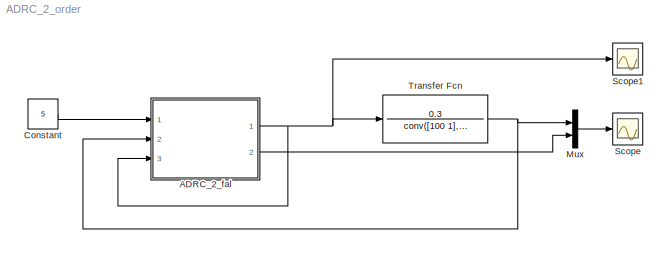
MODEL ADRC_2_order
KIND model
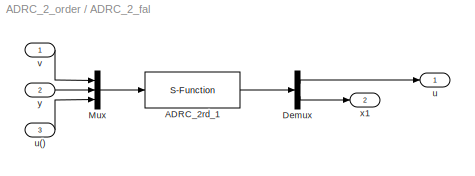
BLOCK [SubSystem] ADRC_2_fal
  AncestorBlock = ADRC/ADRC/ADRC_2rd/ADRC_2_fal
  FunctionWithSeparateData = off
  MaskCallbackString = |||||||||
  MaskEnableString = on,on,on,on,on,on,on,on,on,on
  MaskHideContents = off
  MaskIconFrame = on
  MaskIconOpaque = on
  MaskIconRotate = none
  MaskIconUnits = autoscale
  MaskPortRotate = default
  MaskPromptString = r|h|B01=|B02=|B03=|D=|b|k1=|k2=|Ds=
  MaskStyleString = edit,edit,edit,edit,edit,edit,edit,edit,edit,edit
  MaskToolTipString = on,on,on,on,on,on,on,on,on,on
  MaskTunableValueString = on,on,on,on,on,on,on,on,on,on
  MaskValueString = 0.0001|0.1|20|30|65|0.2|0.5|5|1|0.05
  MaskVariables = r=@1;h=@2;B01=@3;B02=@4;B03=@5;D=@6;b=@7;k1=@8;k2=@9;Ds=@10;
  MaskVisibilityString = on,on,on,on,on,on,on,on,on,on
  MinAlgLoopOccurrences = off
  Opaque = off
  Ports = [3, 2]
  PropExecContextOutsideSubsystem = off
  RTWSystemCode = Auto
  RequestExecContextInheritance = off
  SID = 8
BLOCK [S-Function] ADRC_2_fal/ADRC_2rd_1
  EnableBusSupport = off
  FunctionName = ADRC_2fal
  Parameters = r,h,B01,B02,B03,D,b,k1,k2,Ds
  Ports = [1, 1]
  SID = 8:62
BLOCK [Demux] ADRC_2_fal/Demux
  DisplayOption = bar
  Outputs = 2
  Ports = [1, 2]
  SID = 8:256
BLOCK [Mux] ADRC_2_fal/Mux
  DisplayOption = bar
  Inputs = 3
  Ports = [3, 1]
  SID = 8:144
BLOCK [Outport] ADRC_2_fal/u
  IconDisplay = Port number
  SID = 8:141
BLOCK [Inport] ADRC_2_fal/u()
  IconDisplay = Port number
  Port = 3
  SID = 8:145
BLOCK [Inport] ADRC_2_fal/v
  IconDisplay = Port number
  SID = 8:142
BLOCK [Outport] ADRC_2_fal/x1
  IconDisplay = Port number
  Port = 2
  SID = 8:257
BLOCK [Inport] ADRC_2_fal/y
  IconDisplay = Port number
  Port = 2
  SID = 8:143
BLOCK [Constant] Constant
  SID = 13
  Value = 5
BLOCK [Mux] Mux
  DisplayOption = bar
  Inputs = 2
  Ports = [2, 1]
  SID = 15
BLOCK [Scope] Scope
  DataFormat = StructureWithTime
  Floating = off
  LimitDataPoints = off
  NumInputPorts = 1
  Ports = [1]
  SID = 5
  SampleTime = 0
  TimeRange = 500
  YMax = 300000
  YMin = -200000
BLOCK [Scope] Scope1
  DataFormat = StructureWithTime
  Floating = off
  LimitDataPoints = off
  NumInputPorts = 1
  Ports = [1]
  SID = 12
  SampleTime = 0
  SaveName = ScopeData1
  TimeRange = 500
  YMax = 1000
  YMin = -1000
BLOCK [TransferFcn] Transfer Fcn
  Denominator = conv([100 1],[20 1])
  Numerator = 0.3
  SID = 7
LINE ADRC_2_fal/ADRC_2rd_1:1 -> ADRC_2_fal/Demux:1
LINE ADRC_2_fal/Demux:1 -> ADRC_2_fal/u:1
LINE ADRC_2_fal/Demux:2 -> ADRC_2_fal/x1:1
LINE ADRC_2_fal/Mux:1 -> ADRC_2_fal/ADRC_2rd_1:1
LINE ADRC_2_fal/u():1 -> ADRC_2_fal/Mux:3
LINE ADRC_2_fal/v:1 -> ADRC_2_fal/Mux:1
LINE ADRC_2_fal/y:1 -> ADRC_2_fal/Mux:2
NET ADRC_2_fal:1 -> ADRC_2_fal:3, Scope1:1, Transfer Fcn:1
LINE ADRC_2_fal:2 -> Mux:2
LINE Constant:1 -> ADRC_2_fal:1
LINE Mux:1 -> Scope:1
NET Transfer Fcn:1 -> ADRC_2_fal:2, Mux:1
note: NET lines group one-source signal fan-out (src -> all destinations, sorted); 1:1 wires keep LINE
